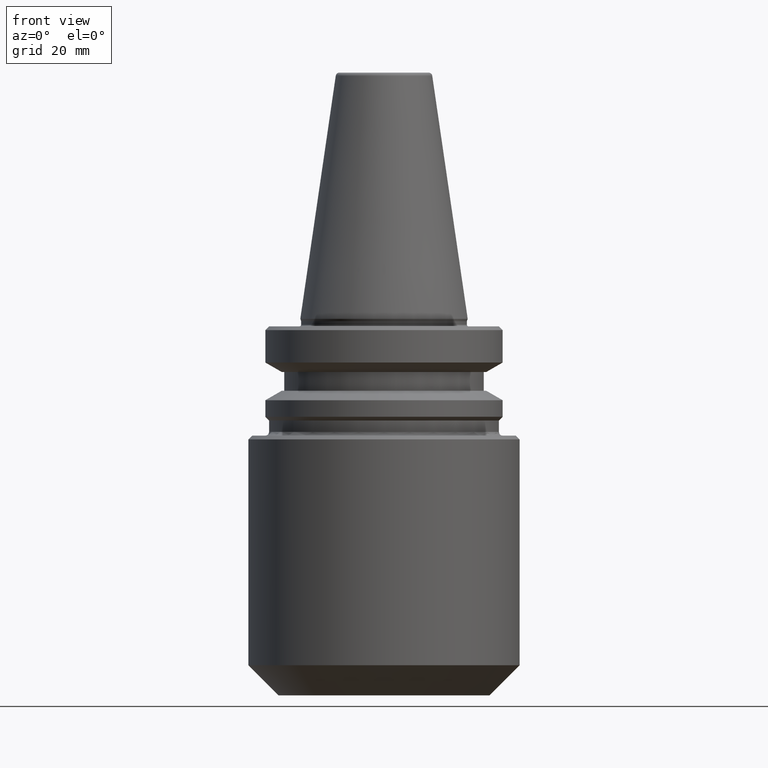
[diagram: clean part render]
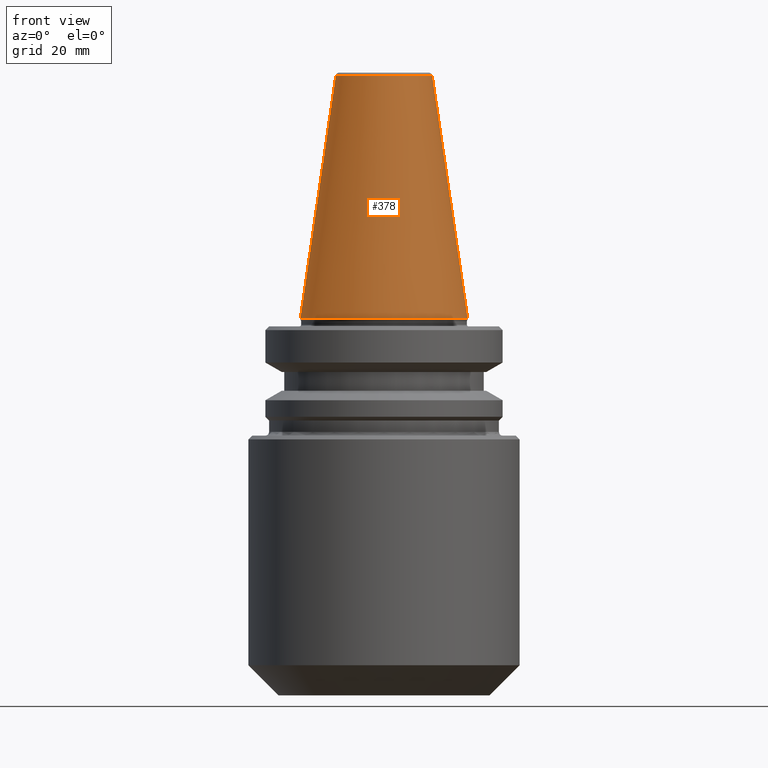
[diagram: same view with one face highlighted and labeled with its STEP entity id]
A machine part, front view. The second image highlights one B-rep face of the part: STEP entity #378.
In plain terms, the highlighted conical surface has half-angle 8.297 deg.
Its self-contained STEP definition (entity closure, byte-faithful):
#23 = VERTEX_POINT ( 'NONE', #660 ) ;
#133 = VECTOR ( 'NONE', #435, 1000.000000000000000 ) ;
#144 = EDGE_CURVE ( 'NONE', #577, #23, #215, .T. ) ;
#158 = CARTESIAN_POINT ( 'NONE',  ( -12.81220206925749700, 1.569042225414529000E-015, 64.54430818888884900 ) ) ;
#176 = CONICAL_SURFACE ( 'NONE', #426, 22.22500000000016100, 0.1448138077623203600 ) ;
#214 = CARTESIAN_POINT ( 'NONE',  ( 0.0000000000000000000, 0.0000000000000000000, 64.54430818888884900 ) ) ;
#215 = LINE ( 'NONE', #1139, #417 ) ;
#219 = ORIENTED_EDGE ( 'NONE', *, *, #1120, .T. ) ;
#312 = DIRECTION ( 'NONE',  ( 1.000000000000000000, 0.0000000000000000000, 0.0000000000000000000 ) ) ;
#352 = DIRECTION ( 'NONE',  ( -0.1443081888881801200, 0.0000000000000000000, -0.9895327920891825400 ) ) ;
#370 = LINE ( 'NONE', #521, #133 ) ;
#378 = ADVANCED_FACE ( 'NONE', ( #906 ), #176, .T. ) ;
#417 = VECTOR ( 'NONE', #352, 1000.000000000000000 ) ;
#426 = AXIS2_PLACEMENT_3D ( 'NONE', #635, #994, #720 ) ;
#435 = DIRECTION ( 'NONE',  ( 0.1443081888881801200, 1.767265616126614100E-017, -0.9895327920891825400 ) ) ;
#458 = DIRECTION ( 'NONE',  ( -0.0000000000000000000, -0.0000000000000000000, 1.000000000000000000 ) ) ;
#521 = CARTESIAN_POINT ( 'NONE',  ( 22.22500000000016100, 2.721777511105012600E-015, 0.0000000000000000000 ) ) ;
#525 = ORIENTED_EDGE ( 'NONE', *, *, #144, .T. ) ;
#542 = VERTEX_POINT ( 'NONE', #1124 ) ;
#577 = VERTEX_POINT ( 'NONE', #158 ) ;
#635 = CARTESIAN_POINT ( 'NONE',  ( 0.0000000000000000000, 0.0000000000000000000, 0.0000000000000000000 ) ) ;
#660 = CARTESIAN_POINT ( 'NONE',  ( -22.22500000000016100, 2.721777511105012600E-015, 0.0000000000000000000 ) ) ;
#705 = EDGE_CURVE ( 'NONE', #542, #721, #370, .T. ) ;
#720 = DIRECTION ( 'NONE',  ( -1.000000000000000000, 0.0000000000000000000, 0.0000000000000000000 ) ) ;
#721 = VERTEX_POINT ( 'NONE', #796 ) ;
#771 = EDGE_LOOP ( 'NONE', ( #1024, #893, #525, #219 ) ) ;
#773 = AXIS2_PLACEMENT_3D ( 'NONE', #997, #458, #1089 ) ;
#796 = CARTESIAN_POINT ( 'NONE',  ( 22.22500000000016100, 0.0000000000000000000, 0.0000000000000000000 ) ) ;
#831 = DIRECTION ( 'NONE',  ( -0.0000000000000000000, -0.0000000000000000000, 1.000000000000000000 ) ) ;
#884 = EDGE_CURVE ( 'NONE', #577, #542, #1061, .T. ) ;
#893 = ORIENTED_EDGE ( 'NONE', *, *, #884, .F. ) ;
#906 = FACE_OUTER_BOUND ( 'NONE', #771, .T. ) ;
#994 = DIRECTION ( 'NONE',  ( 0.0000000000000000000, 0.0000000000000000000, -1.000000000000000000 ) ) ;
#997 = CARTESIAN_POINT ( 'NONE',  ( 0.0000000000000000000, 0.0000000000000000000, 0.0000000000000000000 ) ) ;
#1024 = ORIENTED_EDGE ( 'NONE', *, *, #705, .F. ) ;
#1061 = CIRCLE ( 'NONE', #1100, 12.81220206925748400 ) ;
#1089 = DIRECTION ( 'NONE',  ( 1.000000000000000000, 0.0000000000000000000, 0.0000000000000000000 ) ) ;
#1100 = AXIS2_PLACEMENT_3D ( 'NONE', #214, #831, #312 ) ;
#1108 = CIRCLE ( 'NONE', #773, 22.22500000000016100 ) ;
#1120 = EDGE_CURVE ( 'NONE', #23, #721, #1108, .T. ) ;
#1124 = CARTESIAN_POINT ( 'NONE',  ( 12.81220206925749700, 0.0000000000000000000, 64.54430818888884900 ) ) ;
#1139 = CARTESIAN_POINT ( 'NONE',  ( -22.22500000000016100, 0.0000000000000000000, 0.0000000000000000000 ) ) ;